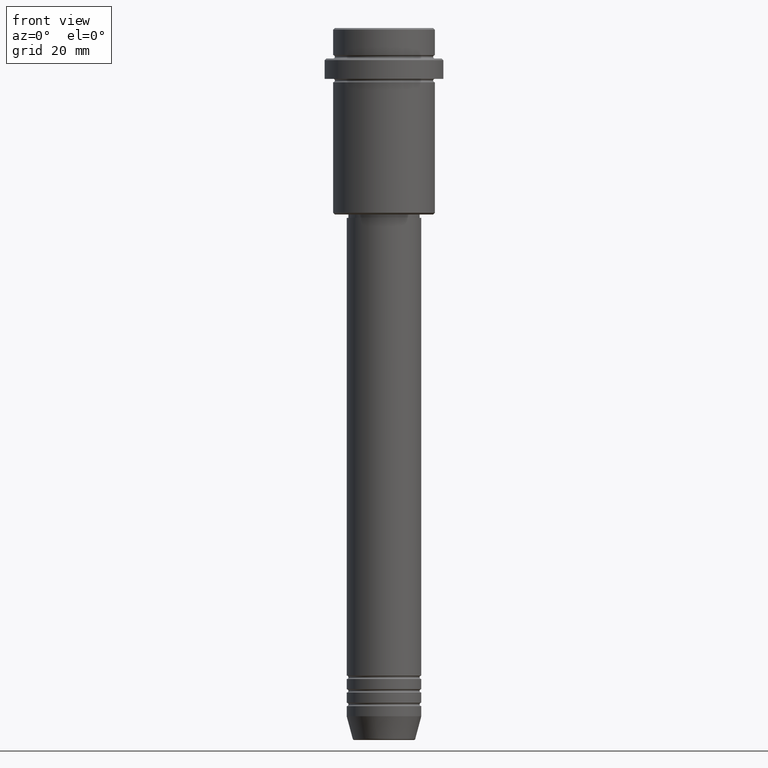
[diagram: clean part render]
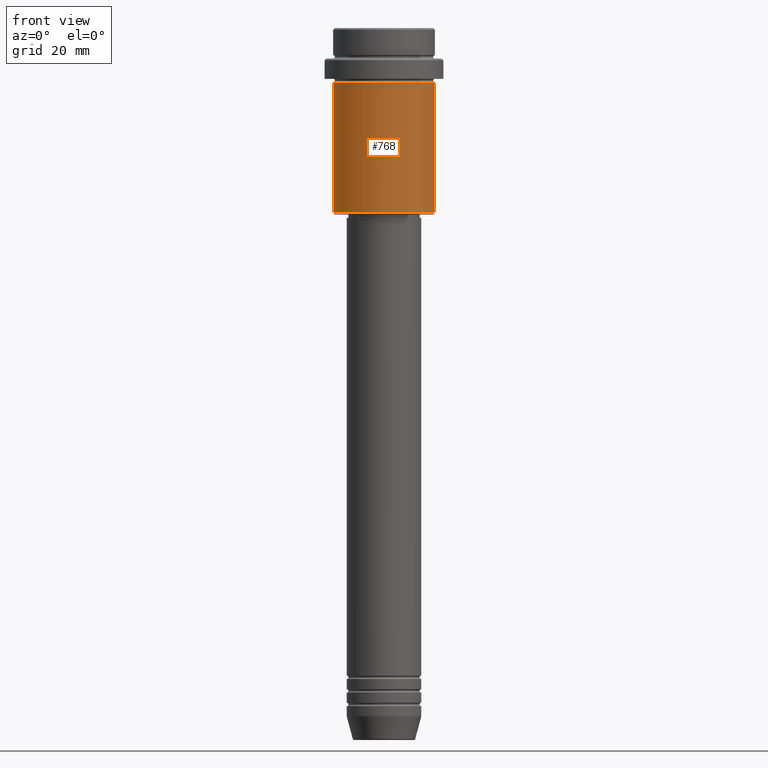
[diagram: same view with one face highlighted and labeled with its STEP entity id]
A machine part, front view. The second image highlights one B-rep face of the part: STEP entity #768.
In plain terms, the highlighted cylindrical surface (partial cylindrical patch) has radius 15 mm, axis along (-0, -0, 1).
Its self-contained STEP definition (entity closure, byte-faithful):
#4 = CARTESIAN_POINT ( 'NONE',  ( 15.00000000000000178, 0.000000000000000000, -16.00000000000000000 ) ) ;
#66 = CIRCLE ( 'NONE', #538, 15.00000000000000178 ) ;
#100 = ORIENTED_EDGE ( 'NONE', *, *, #529, .T. ) ;
#102 = CARTESIAN_POINT ( 'NONE',  ( 0.000000000000000000, 0.000000000000000000, -54.50000000000001421 ) ) ;
#137 = CIRCLE ( 'NONE', #822, 15.00000000000000000 ) ;
#231 = VERTEX_POINT ( 'NONE', #611 ) ;
#255 = ORIENTED_EDGE ( 'NONE', *, *, #298, .F. ) ;
#298 = EDGE_CURVE ( 'NONE', #231, #923, #66, .T. ) ;
#357 = CARTESIAN_POINT ( 'NONE',  ( 15.00000000000000000, 0.000000000000000000, 0.000000000000000000 ) ) ;
#363 = DIRECTION ( 'NONE',  ( -1.000000000000000000, 0.000000000000000000, 0.000000000000000000 ) ) ;
#385 = ORIENTED_EDGE ( 'NONE', *, *, #927, .T. ) ;
#433 = CYLINDRICAL_SURFACE ( 'NONE', #488, 15.00000000000000000 ) ;
#470 = LINE ( 'NONE', #357, #1306 ) ;
#488 = AXIS2_PLACEMENT_3D ( 'NONE', #1188, #854, #1165 ) ;
#494 = VERTEX_POINT ( 'NONE', #989 ) ;
#529 = EDGE_CURVE ( 'NONE', #851, #923, #470, .T. ) ;
#538 = AXIS2_PLACEMENT_3D ( 'NONE', #964, #1158, #747 ) ;
#540 = CARTESIAN_POINT ( 'NONE',  ( 15.00000000000000000, 0.000000000000000000, -54.50000000000001421 ) ) ;
#545 = DIRECTION ( 'NONE',  ( -0.000000000000000000, -0.000000000000000000, 1.000000000000000000 ) ) ;
#611 = CARTESIAN_POINT ( 'NONE',  ( -15.00000000000000355, 1.836970198721029983E-15, -16.00000000000000000 ) ) ;
#647 = DIRECTION ( 'NONE',  ( -0.000000000000000000, -0.000000000000000000, 1.000000000000000000 ) ) ;
#746 = FACE_OUTER_BOUND ( 'NONE', #1172, .T. ) ;
#747 = DIRECTION ( 'NONE',  ( 1.000000000000000000, 0.000000000000000000, 0.000000000000000000 ) ) ;
#768 = ADVANCED_FACE ( 'NONE', ( #746 ), #433, .T. ) ;
#818 = EDGE_CURVE ( 'NONE', #494, #231, #1059, .T. ) ;
#822 = AXIS2_PLACEMENT_3D ( 'NONE', #102, #545, #363 ) ;
#837 = CARTESIAN_POINT ( 'NONE',  ( -15.00000000000000000, 1.836970198721029589E-15, 0.000000000000000000 ) ) ;
#839 = ORIENTED_EDGE ( 'NONE', *, *, #818, .F. ) ;
#851 = VERTEX_POINT ( 'NONE', #540 ) ;
#854 = DIRECTION ( 'NONE',  ( -0.000000000000000000, -0.000000000000000000, 1.000000000000000000 ) ) ;
#923 = VERTEX_POINT ( 'NONE', #4 ) ;
#927 = EDGE_CURVE ( 'NONE', #494, #851, #137, .T. ) ;
#964 = CARTESIAN_POINT ( 'NONE',  ( 0.000000000000000000, 0.000000000000000000, -16.00000000000000000 ) ) ;
#989 = CARTESIAN_POINT ( 'NONE',  ( -15.00000000000000000, 1.836970198721029589E-15, -54.50000000000001421 ) ) ;
#1059 = LINE ( 'NONE', #837, #1254 ) ;
#1158 = DIRECTION ( 'NONE',  ( -0.000000000000000000, -0.000000000000000000, 1.000000000000000000 ) ) ;
#1165 = DIRECTION ( 'NONE',  ( 1.000000000000000000, 0.000000000000000000, 0.000000000000000000 ) ) ;
#1172 = EDGE_LOOP ( 'NONE', ( #839, #385, #100, #255 ) ) ;
#1188 = CARTESIAN_POINT ( 'NONE',  ( 0.000000000000000000, 0.000000000000000000, 0.000000000000000000 ) ) ;
#1198 = DIRECTION ( 'NONE',  ( -0.000000000000000000, -0.000000000000000000, 1.000000000000000000 ) ) ;
#1254 = VECTOR ( 'NONE', #647, 1000.000000000000000 ) ;
#1306 = VECTOR ( 'NONE', #1198, 1000.000000000000000 ) ;